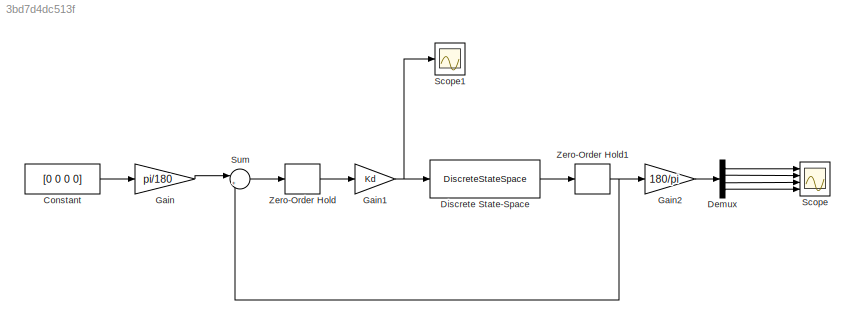
MODEL slx_3bd7d4dc513f
KIND model
CONFIG AbsTol = auto
CONFIG EnableMultiTasking = off
CONFIG FixedStep = auto
CONFIG MaxStep = auto
CONFIG MinStep = auto
CONFIG RelTol = 1e-3
CONFIG SampleTimeConstraint = Unconstrained
CONFIG SolverName = VariableStepAuto
CONFIG StartTime = 0.0
CONFIG StopTime = 5
BLOCK [Constant] Constant
  Value = [0 0 0 0]
BLOCK [Demux] Demux
  Ports = [1, 4]
BLOCK [DiscreteStateSpace] Discrete State-Space
  A = sys_d.A
  B = sys_d.B
  C = sys_d.C
  D = sys_d.D
  InitialCondition = [0,5*pi/180,0,0]
  SampleTime = 0.06
BLOCK [Gain] Gain
  Gain = pi/180
BLOCK [Gain] Gain1
  Gain = Kd
  Multiplication = Matrix(K*u)
BLOCK [Gain] Gain2
  Gain = 180/pi
BLOCK [Scope] Scope
  Floating = off
  NumInputPorts = 4
  Ports = [4]
  ScopeSpecificationString = Simulink.scopes.TimeScopeBlockCfg('CurrentConfiguration', extmgr.ConfigurationSet(extmgr.Configuration('Core','General UI',true,'FigureColor',[1 1 1]),extmgr.Configuration('Core','Source UI',true),extmgr.Configuration('Sources','WiredSimulink',true),extmgr.Configuration('Visuals','Time Domain',true,'SerializedDisplays',{struct('MinYLimReal','-19.02979','MaxYLimReal','7.66998','YLabelReal','','MinY...<+1971ch>
BLOCK [Scope] Scope1
  Floating = off
  NumInputPorts = 1
  Ports = [1]
  ScopeSpecificationString = Simulink.scopes.TimeScopeBlockCfg('CurrentConfiguration', extmgr.ConfigurationSet(extmgr.Configuration('Core','General UI',true,'FigureColor',[1 1 1]),extmgr.Configuration('Core','Source UI',true),extmgr.Configuration('Sources','WiredSimulink',true,'DataLoggingVariableName','ScopeData1'),extmgr.Configuration('Visuals','Time Domain',true,'SerializedDisplays',{struct('MinYLimReal','-3.07206','MaxYLi...<+1578ch>
BLOCK [Sum] Sum
  Inputs = |+-
  Ports = [2, 1]
BLOCK [ZeroOrderHold] Zero-Order Hold
  SampleTime = 0.06
BLOCK [ZeroOrderHold] Zero-Order Hold1
  SampleTime = 0.06
LINE Constant:1 -> Gain:1
LINE Demux:1 -> Scope:1
LINE Demux:2 -> Scope:2
LINE Demux:3 -> Scope:3
LINE Demux:4 -> Scope:4
LINE Discrete State-Space:1 -> Zero-Order Hold1:1
NET Gain1:1 -> Discrete State-Space:1, Scope1:1
LINE Gain2:1 -> Demux:1
LINE Gain:1 -> Sum:1
LINE Sum:1 -> Zero-Order Hold:1
NET Zero-Order Hold1:1 -> Gain2:1, Sum:2
LINE Zero-Order Hold:1 -> Gain1:1
note: NET lines group one-source signal fan-out (src -> all destinations, sorted); 1:1 wires keep LINE
